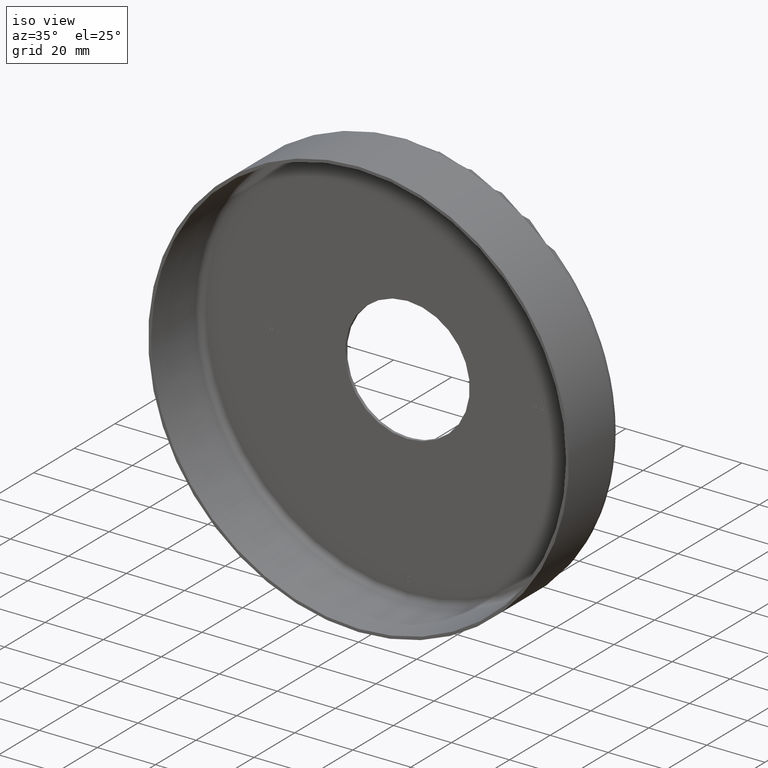
[diagram: clean part render]
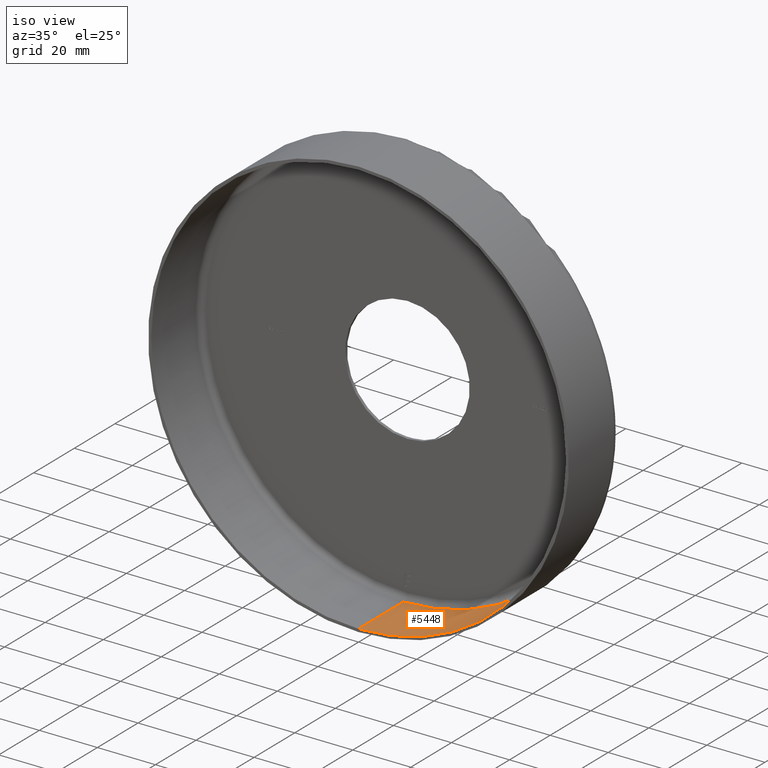
[diagram: same view with one face highlighted and labeled with its STEP entity id]
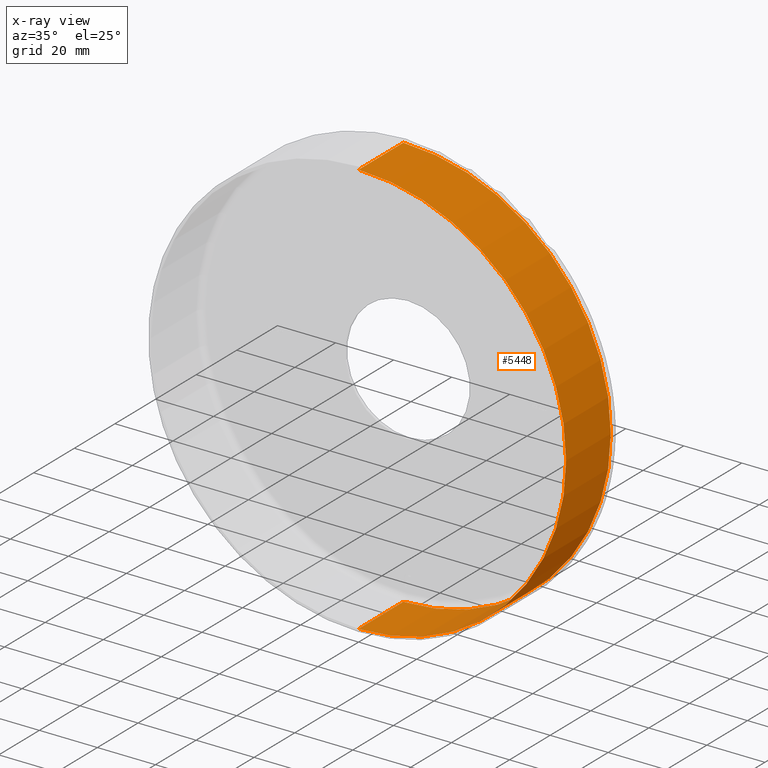
[diagram: x-ray of the same camera — body ghosted, the highlighted face saturated]
A machine part, iso view. The second image highlights one B-rep face of the part: STEP entity #5448.
The next image is the same camera in x-ray: the body ghosted, the highlighted face saturated — about 0% of this face is hidden behind the body in this view.
In plain terms, the highlighted cylindrical surface (partial cylindrical patch) has radius 71.5 mm, axis along (-0, -1, -0).
Its self-contained STEP definition (entity closure, byte-faithful):
#121 = DIRECTION ( 'NONE',  ( -0.000000000000000000, -1.000000000000000000, -0.000000000000000000 ) ) ;
#246 = DIRECTION ( 'NONE',  ( -0.000000000000000000, -1.000000000000000000, -0.000000000000000000 ) ) ;
#338 = ORIENTED_EDGE ( 'NONE', *, *, #4223, .F. ) ;
#807 = VERTEX_POINT ( 'NONE', #846 ) ;
#846 = CARTESIAN_POINT ( 'NONE',  ( 0.000000000000000000, -1.224646799147353207E-16, -71.50000000000000000 ) ) ;
#916 = EDGE_CURVE ( 'NONE', #12772, #807, #6342, .T. ) ;
#1835 = DIRECTION ( 'NONE',  ( 0.000000000000000000, 0.000000000000000000, -1.000000000000000000 ) ) ;
#2419 = CYLINDRICAL_SURFACE ( 'NONE', #5184, 71.50000000000000000 ) ;
#2472 = DIRECTION ( 'NONE',  ( -0.000000000000000000, -1.000000000000000000, -0.000000000000000000 ) ) ;
#2817 = LINE ( 'NONE', #3870, #10721 ) ;
#3870 = CARTESIAN_POINT ( 'NONE',  ( 8.756224613903574137E-15, 0.000000000000000000, 71.50000000000000000 ) ) ;
#4125 = AXIS2_PLACEMENT_3D ( 'NONE', #12706, #2472, #15270 ) ;
#4223 = EDGE_CURVE ( 'NONE', #13672, #16796, #2817, .T. ) ;
#4689 = ORIENTED_EDGE ( 'NONE', *, *, #15561, .F. ) ;
#5184 = AXIS2_PLACEMENT_3D ( 'NONE', #6133, #7437, #15229 ) ;
#5448 = ADVANCED_FACE ( 'NONE', ( #9910 ), #2419, .F. ) ;
#6133 = CARTESIAN_POINT ( 'NONE',  ( 0.000000000000000000, 0.000000000000000000, 0.000000000000000000 ) ) ;
#6342 = LINE ( 'NONE', #9174, #9782 ) ;
#6832 = ORIENTED_EDGE ( 'NONE', *, *, #916, .T. ) ;
#7437 = DIRECTION ( 'NONE',  ( -0.000000000000000000, -1.000000000000000000, -0.000000000000000000 ) ) ;
#7517 = CARTESIAN_POINT ( 'NONE',  ( 8.756224613903574137E-15, 22.00000000000000355, 71.50000000000000000 ) ) ;
#8349 = DIRECTION ( 'NONE',  ( -0.000000000000000000, -1.000000000000000000, -0.000000000000000000 ) ) ;
#9174 = CARTESIAN_POINT ( 'NONE',  ( 0.000000000000000000, 0.000000000000000000, -71.50000000000000000 ) ) ;
#9636 = CARTESIAN_POINT ( 'NONE',  ( 0.000000000000000000, -1.224646799147353207E-16, 0.000000000000000000 ) ) ;
#9782 = VECTOR ( 'NONE', #246, 1000.000000000000000 ) ;
#9837 = CIRCLE ( 'NONE', #15686, 71.50000000000000000 ) ;
#9910 = FACE_OUTER_BOUND ( 'NONE', #12434, .T. ) ;
#10721 = VECTOR ( 'NONE', #121, 1000.000000000000000 ) ;
#10837 = CARTESIAN_POINT ( 'NONE',  ( 0.000000000000000000, 22.00000000000000355, -71.50000000000000000 ) ) ;
#10996 = EDGE_CURVE ( 'NONE', #807, #16796, #9837, .T. ) ;
#10998 = ORIENTED_EDGE ( 'NONE', *, *, #10996, .T. ) ;
#12434 = EDGE_LOOP ( 'NONE', ( #338, #4689, #6832, #10998 ) ) ;
#12706 = CARTESIAN_POINT ( 'NONE',  ( 0.000000000000000000, 22.00000000000000355, 0.000000000000000000 ) ) ;
#12772 = VERTEX_POINT ( 'NONE', #10837 ) ;
#13010 = CIRCLE ( 'NONE', #4125, 71.50000000000000000 ) ;
#13672 = VERTEX_POINT ( 'NONE', #7517 ) ;
#15229 = DIRECTION ( 'NONE',  ( 0.000000000000000000, 0.000000000000000000, -1.000000000000000000 ) ) ;
#15270 = DIRECTION ( 'NONE',  ( 0.000000000000000000, 0.000000000000000000, -1.000000000000000000 ) ) ;
#15561 = EDGE_CURVE ( 'NONE', #12772, #13672, #13010, .T. ) ;
#15686 = AXIS2_PLACEMENT_3D ( 'NONE', #9636, #8349, #1835 ) ;
#16434 = CARTESIAN_POINT ( 'NONE',  ( 8.756224613903574137E-15, -1.224646799147353207E-16, 71.50000000000000000 ) ) ;
#16796 = VERTEX_POINT ( 'NONE', #16434 ) ;